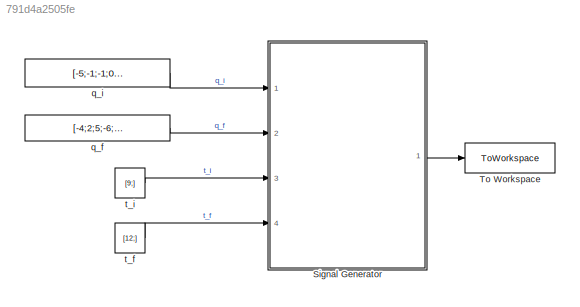
MODEL slx_791d4a2505fe
KIND model
CONFIG AbsTol = auto
CONFIG EnableMultiTasking = off
CONFIG FixedStep = [0.01;]
CONFIG MaxStep = auto
CONFIG MinStep = auto
CONFIG RelTol = 1e-3
CONFIG SampleTimeConstraint = Unconstrained
CONFIG SolverName = FixedStepAuto
CONFIG StartTime = 0.0
CONFIG StopTime = [18;]
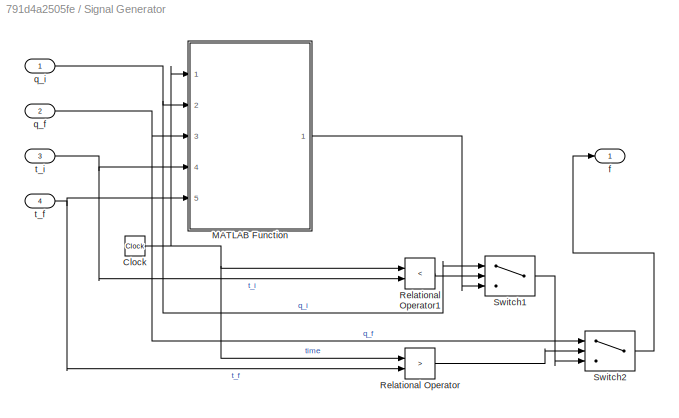
BLOCK [SubSystem] Signal Generator
  Ports = [4, 1]
  RequestExecContextInheritance = off
BLOCK [Clock] Signal Generator/Clock
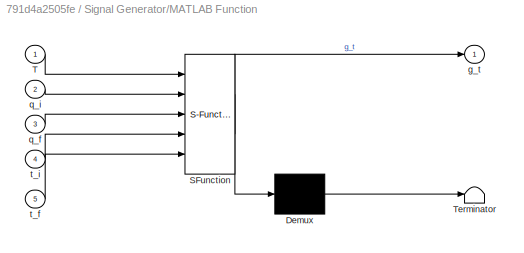
BLOCK [SubSystem] Signal Generator/MATLAB Function
  ErrorFcn = Stateflow.Translate.translate
  PermitHierarchicalResolution = ExplicitOnly
  Ports = [5, 1]
  RequestExecContextInheritance = off
  SFBlockType = MATLAB Function
  TreatAsAtomicUnit = on
BLOCK [Demux] Signal Generator/MATLAB Function/ Demux 
  Outputs = 1
  Ports = [1, 1]
BLOCK [S-Function] Signal Generator/MATLAB Function/ SFunction 
  EnableBusSupport = on
  FunctionName = sf_sfun
  PortCounts = [5 2]
  Ports = [5, 2]
  SFcnIsStateOwnerBlock = off
  SFunctionDeploymentMode = off
  Tag = Stateflow S-Function 2
BLOCK [Terminator] Signal Generator/MATLAB Function/ Terminator 
BLOCK [Inport] Signal Generator/MATLAB Function/T
BLOCK [Outport] Signal Generator/MATLAB Function/g_t
BLOCK [Inport] Signal Generator/MATLAB Function/q_f
  Port = 3
BLOCK [Inport] Signal Generator/MATLAB Function/q_i
  Port = 2
BLOCK [Inport] Signal Generator/MATLAB Function/t_f
  Port = 5
BLOCK [Inport] Signal Generator/MATLAB Function/t_i
  Port = 4
BLOCK [RelationalOperator] Signal Generator/Relational Operator
  InputSameDT = off
  Operator = >
  OutDataTypeStr = boolean
  Ports = [2, 1]
  RndMeth = Simplest
BLOCK [RelationalOperator] Signal Generator/Relational Operator1
  InputSameDT = off
  Operator = <
  OutDataTypeStr = boolean
  Ports = [2, 1]
  RndMeth = Simplest
BLOCK [Switch] Signal Generator/Switch1
  Criteria = u2 > Threshold
  InputSameDT = off
  SaturateOnIntegerOverflow = off
BLOCK [Switch] Signal Generator/Switch2
  Criteria = u2 > Threshold
  InputSameDT = off
  SaturateOnIntegerOverflow = off
BLOCK [Outport] Signal Generator/f
BLOCK [Inport] Signal Generator/q_f
  Port = 2
BLOCK [Inport] Signal Generator/q_i
BLOCK [Inport] Signal Generator/t_f
  Port = 4
BLOCK [Inport] Signal Generator/t_i
  Port = 3
BLOCK [ToWorkspace] To Workspace
  FixptAsFi = on
  MaxDataPoints = inf
  Ports = [1]
  SampleTime = -1
  SaveFormat = Timeseries
  VariableName = simout
BLOCK [Constant] q_f
  Value = [-4;2;5;-6;4;-10;6;-8;6;]
BLOCK [Constant] q_i
  Value = [-5;-1;-1;0;1;3;3;4;6;]
BLOCK [Constant] t_f
  Value = [12;]
BLOCK [Constant] t_i
  Value = [9;]
NET Signal Generator/Clock:1 -> Signal Generator/MATLAB Function:1, Signal Generator/Relational Operator1:1, Signal Generator/Relational Operator:1
LINE Signal Generator/MATLAB Function:1 -> Signal Generator/Switch1:3
LINE Signal Generator/Relational Operator1:1 -> Signal Generator/Switch1:2
LINE Signal Generator/Relational Operator:1 -> Signal Generator/Switch2:2
LINE Signal Generator/Switch1:1 -> Signal Generator/Switch2:3
LINE Signal Generator/Switch2:1 -> Signal Generator/f:1
NET Signal Generator/q_f:1 -> Signal Generator/MATLAB Function:3, Signal Generator/Switch2:1
NET Signal Generator/q_i:1 -> Signal Generator/MATLAB Function:2, Signal Generator/Switch1:1
NET Signal Generator/t_f:1 -> Signal Generator/MATLAB Function:5, Signal Generator/Relational Operator:2
NET Signal Generator/t_i:1 -> Signal Generator/MATLAB Function:4, Signal Generator/Relational Operator1:2
LINE Signal Generator:1 -> To Workspace:1
LINE q_f:1 -> Signal Generator:2
LINE q_i:1 -> Signal Generator:1
LINE t_f:1 -> Signal Generator:4
LINE t_i:1 -> Signal Generator:3
note: NET lines group one-source signal fan-out (src -> all destinations, sorted); 1:1 wires keep LINE
CHART Signal Generator/MATLAB Function states=1 transitions=1
  STATE_LABEL 'eML_blk_kernel()'
  STATE_LABEL 'SCRIPT:\nfunction g_t = fcn(T,q_i,q_f,t_i,t_f)\n%สร้างตัวแปร C ที่มีขนาดเท่ากับเมทริกซ์ [จำนนวนVectorที่รับเข้ามา x สัมประสิทธิ์]\nc = zeros(numel(q_i),4);\n%{\nสร้างลูปจำนวน numel(q_i) ครั้งเพื่อรันเว็กเตอร์ทุกตัวที่รับค่าเข้ามา\nสร้าง RHS ที่เป็นเมทริกซ์ทางด้านขวามือของสมการ\nและสร้าง A เป็นเมทริกซ์ทางด้านซ้ายของสมการเพื่อใช้ในการแก้สมการ\nตั้งให้ ac0,ac1,ac2,ac3 มีค่าเท่ากับ A ที่แทนค่าColumnที่ 1,2,3,...<+903ch>'
CHART  states=0 transitions=0
